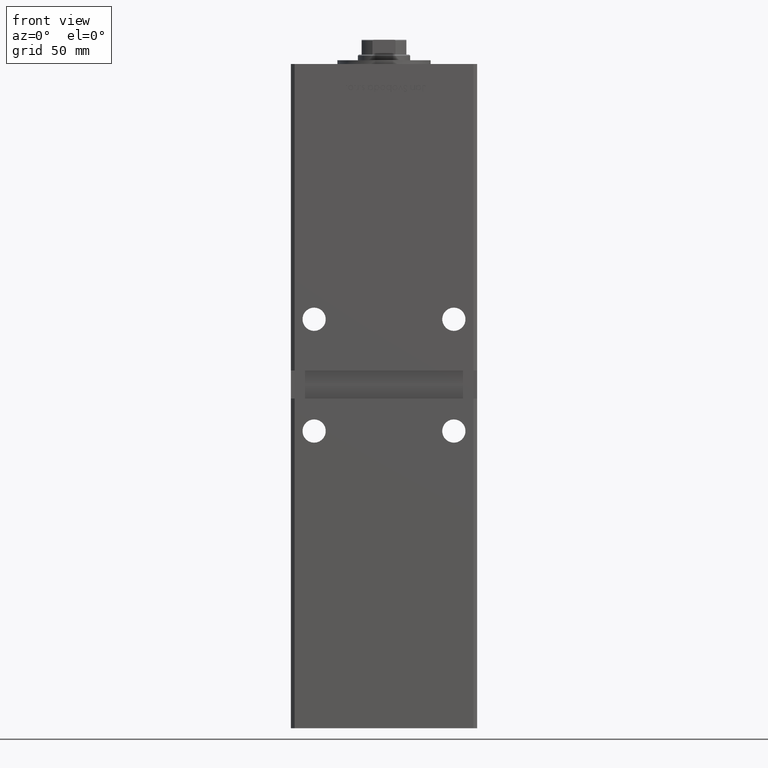
[diagram: clean part render]
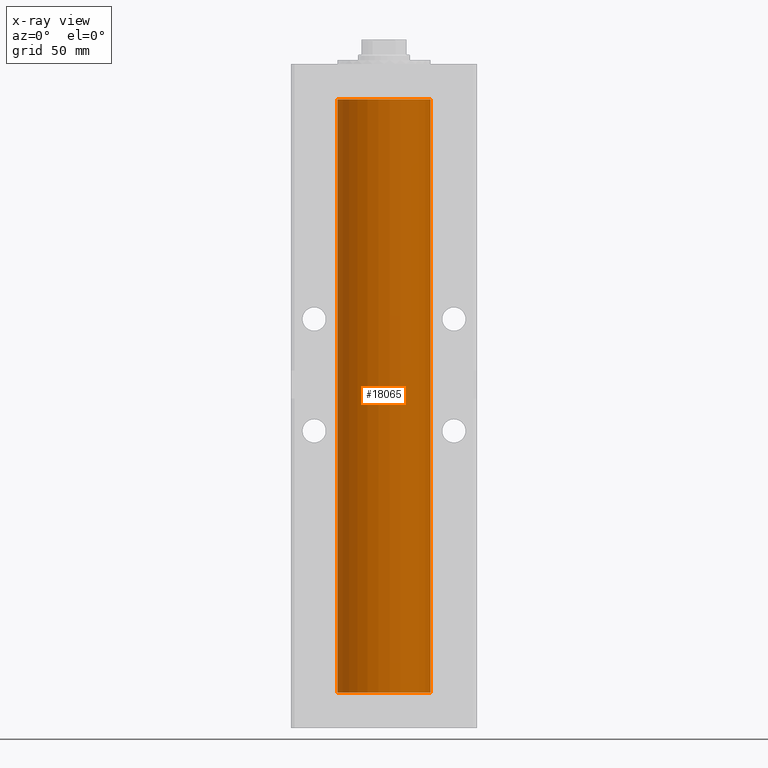
[diagram: x-ray — body ghosted, one internal face saturated and labeled with its STEP entity id]
A machine part, front view, then the same camera in x-ray: the body is ghosted and one INTERNAL B-rep face — a face not visible from any outside direction — is saturated and labeled: STEP entity #18065.
In plain terms, the highlighted cylindrical surface (partial cylindrical patch) has radius 25 mm, axis along (-0, -0, -1).
Its self-contained STEP definition (entity closure, byte-faithful):
#1242 = VERTEX_POINT ( 'NONE', #22746 ) ;
#1619 = LINE ( 'NONE', #34379, #50184 ) ;
#2081 = FACE_OUTER_BOUND ( 'NONE', #24446, .T. ) ;
#2348 = DIRECTION ( 'NONE',  ( -0.000000000000000000, -0.000000000000000000, -1.000000000000000000 ) ) ;
#4274 = DIRECTION ( 'NONE',  ( 1.000000000000000000, 0.000000000000000000, 0.000000000000000000 ) ) ;
#5081 = EDGE_CURVE ( 'NONE', #12884, #9955, #1619, .T. ) ;
#5349 = CIRCLE ( 'NONE', #44818, 25.00000000000000000 ) ;
#7545 = CIRCLE ( 'NONE', #26438, 25.00000000000000000 ) ;
#9955 = VERTEX_POINT ( 'NONE', #16958 ) ;
#10787 = CARTESIAN_POINT ( 'NONE',  ( -25.00000000000000000, 0.000000000000000000, 318.5000000000000000 ) ) ;
#11362 = EDGE_CURVE ( 'NONE', #43770, #9955, #7545, .T. ) ;
#12884 = VERTEX_POINT ( 'NONE', #24090 ) ;
#14396 = DIRECTION ( 'NONE',  ( -0.000000000000000000, 0.000000000000000000, 1.000000000000000000 ) ) ;
#16958 = CARTESIAN_POINT ( 'NONE',  ( 25.00000000000000000, 3.061616997868383043E-15, 0.000000000000000000 ) ) ;
#17194 = AXIS2_PLACEMENT_3D ( 'NONE', #50705, #2348, #43705 ) ;
#17569 = EDGE_CURVE ( 'NONE', #1242, #43770, #51909, .T. ) ;
#18065 = ADVANCED_FACE ( 'NONE', ( #2081 ), #34580, .F. ) ;
#21723 = ORIENTED_EDGE ( 'NONE', *, *, #5081, .T. ) ;
#22746 = CARTESIAN_POINT ( 'NONE',  ( -25.00000000000000000, 0.000000000000000000, 318.5000000000000000 ) ) ;
#24090 = CARTESIAN_POINT ( 'NONE',  ( 25.00000000000000000, 3.061616997868383043E-15, 318.5000000000000000 ) ) ;
#24438 = CARTESIAN_POINT ( 'NONE',  ( 0.000000000000000000, 0.000000000000000000, 318.5000000000000000 ) ) ;
#24446 = EDGE_LOOP ( 'NONE', ( #52952, #21723, #32001, #29891 ) ) ;
#26242 = DIRECTION ( 'NONE',  ( 1.000000000000000000, 0.000000000000000000, 0.000000000000000000 ) ) ;
#26438 = AXIS2_PLACEMENT_3D ( 'NONE', #51224, #14396, #26242 ) ;
#27194 = DIRECTION ( 'NONE',  ( -0.000000000000000000, -0.000000000000000000, -1.000000000000000000 ) ) ;
#27465 = VECTOR ( 'NONE', #27194, 1000.000000000000000 ) ;
#28616 = EDGE_CURVE ( 'NONE', #1242, #12884, #5349, .T. ) ;
#29891 = ORIENTED_EDGE ( 'NONE', *, *, #17569, .F. ) ;
#32001 = ORIENTED_EDGE ( 'NONE', *, *, #11362, .F. ) ;
#34379 = CARTESIAN_POINT ( 'NONE',  ( 25.00000000000000000, 3.061616997868383043E-15, 318.5000000000000000 ) ) ;
#34580 = CYLINDRICAL_SURFACE ( 'NONE', #17194, 25.00000000000000000 ) ;
#43705 = DIRECTION ( 'NONE',  ( -1.000000000000000000, 0.000000000000000000, 0.000000000000000000 ) ) ;
#43770 = VERTEX_POINT ( 'NONE', #53160 ) ;
#44818 = AXIS2_PLACEMENT_3D ( 'NONE', #24438, #45124, #4274 ) ;
#45124 = DIRECTION ( 'NONE',  ( -0.000000000000000000, 0.000000000000000000, 1.000000000000000000 ) ) ;
#46748 = DIRECTION ( 'NONE',  ( -0.000000000000000000, -0.000000000000000000, -1.000000000000000000 ) ) ;
#50184 = VECTOR ( 'NONE', #46748, 1000.000000000000000 ) ;
#50705 = CARTESIAN_POINT ( 'NONE',  ( 0.000000000000000000, 0.000000000000000000, 318.5000000000000000 ) ) ;
#51224 = CARTESIAN_POINT ( 'NONE',  ( 0.000000000000000000, 0.000000000000000000, 0.000000000000000000 ) ) ;
#51909 = LINE ( 'NONE', #10787, #27465 ) ;
#52952 = ORIENTED_EDGE ( 'NONE', *, *, #28616, .T. ) ;
#53160 = CARTESIAN_POINT ( 'NONE',  ( -25.00000000000000000, 0.000000000000000000, 0.000000000000000000 ) ) ;